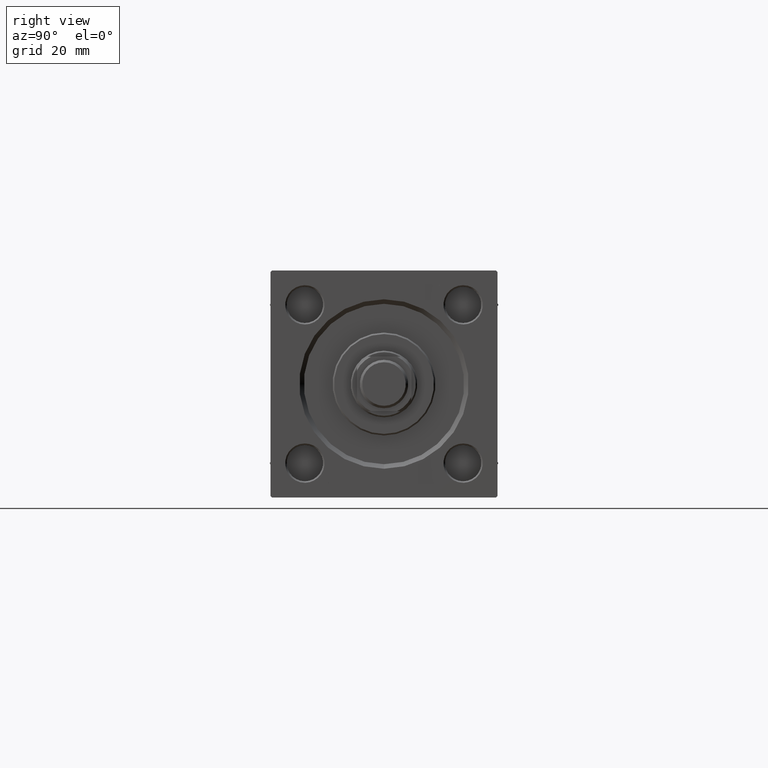
[diagram: clean part render]
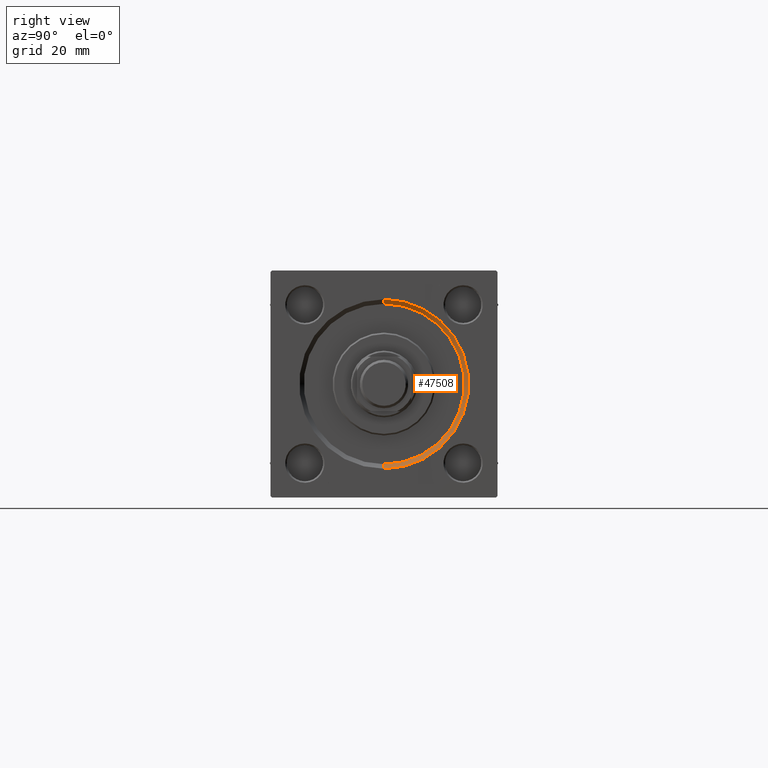
[diagram: same view with one face highlighted and labeled with its STEP entity id]
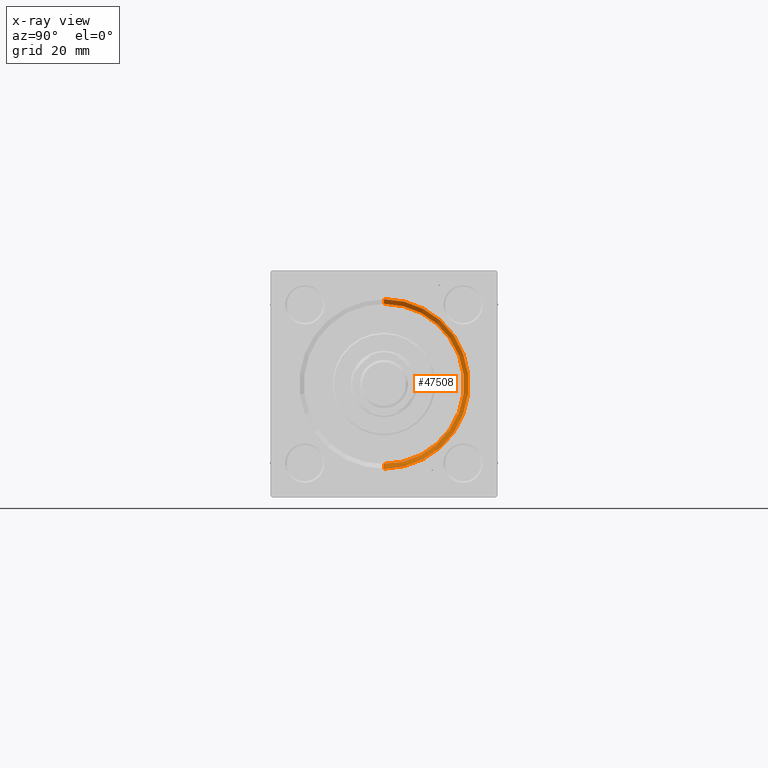
[diagram: x-ray of the same camera — body ghosted, the highlighted face saturated]
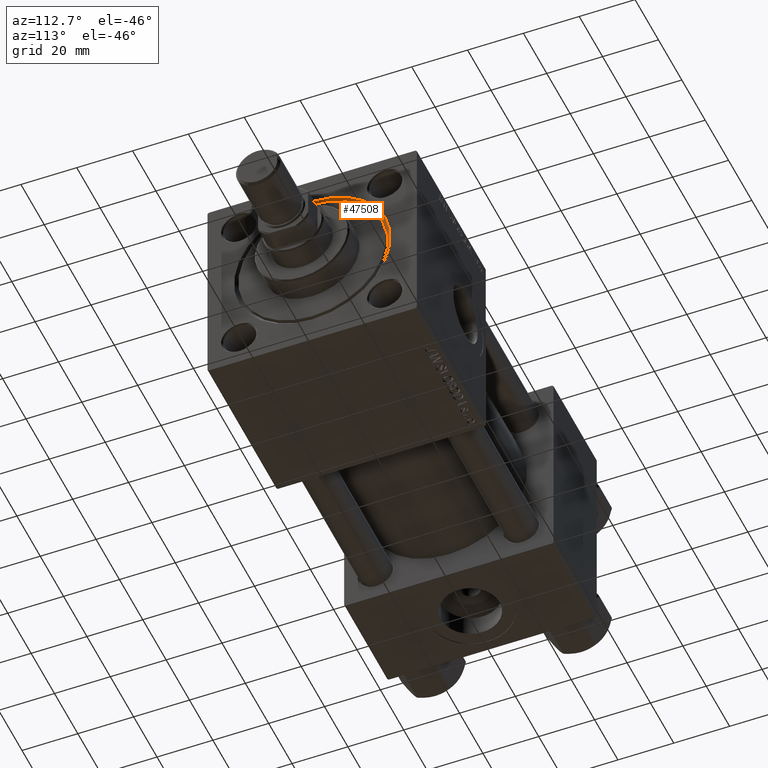
[diagram: same view with one face highlighted and labeled with its STEP entity id]
A machine part, right view. The second image highlights one B-rep face of the part: STEP entity #47508.
The next image is the same camera in x-ray: the body ghosted, the highlighted face saturated — about 0% of this face is hidden behind the body in this view.
A second angle (auxiliary view) of the same face is appended — the face is thin or edge-on in the first view.
In plain terms, the highlighted conical surface has half-angle 45 deg.
Its self-contained STEP definition (entity closure, byte-faithful):
#3 = CIRCLE ( 'NONE', #3303, 27.99999999999999645 ) ;
#1980 = CARTESIAN_POINT ( 'NONE',  ( 154.0000000000000000, 3.429011037612588881E-15, 27.99999999999999645 ) ) ;
#2979 = CARTESIAN_POINT ( 'NONE',  ( 152.5000000000000568, 0.000000000000000000, -26.50000000000000355 ) ) ;
#3303 = AXIS2_PLACEMENT_3D ( 'NONE', #8454, #11806, #22375 ) ;
#3940 = CARTESIAN_POINT ( 'NONE',  ( 152.5000000000000568, 0.000000000000000000, 0.000000000000000000 ) ) ;
#4508 = VERTEX_POINT ( 'NONE', #38009 ) ;
#5152 = FACE_OUTER_BOUND ( 'NONE', #10216, .T. ) ;
#5654 = DIRECTION ( 'NONE',  ( 0.000000000000000000, 0.000000000000000000, -1.000000000000000000 ) ) ;
#6317 = ORIENTED_EDGE ( 'NONE', *, *, #23012, .F. ) ;
#8276 = DIRECTION ( 'NONE',  ( 1.000000000000000000, 0.000000000000000000, 0.000000000000000000 ) ) ;
#8454 = CARTESIAN_POINT ( 'NONE',  ( 154.0000000000000000, 0.000000000000000000, 0.000000000000000000 ) ) ;
#10216 = EDGE_LOOP ( 'NONE', ( #23366, #6317, #46749, #34353 ) ) ;
#11589 = EDGE_CURVE ( 'NONE', #49525, #33940, #19099, .T. ) ;
#11806 = DIRECTION ( 'NONE',  ( -1.000000000000000000, -0.000000000000000000, 0.000000000000000000 ) ) ;
#13573 = CARTESIAN_POINT ( 'NONE',  ( 154.0000000000000000, 0.000000000000000000, -27.99999999999999645 ) ) ;
#13885 = LINE ( 'NONE', #41044, #31401 ) ;
#14500 = AXIS2_PLACEMENT_3D ( 'NONE', #20763, #48178, #5654 ) ;
#15312 = CONICAL_SURFACE ( 'NONE', #14500, 26.50000000000000355, 0.7853981633974644883 ) ;
#16247 = CIRCLE ( 'NONE', #17054, 26.50000000000000355 ) ;
#17054 = AXIS2_PLACEMENT_3D ( 'NONE', #3940, #8276, #23383 ) ;
#19099 = LINE ( 'NONE', #2979, #19137 ) ;
#19137 = VECTOR ( 'NONE', #49335, 1000.000000000000114 ) ;
#20763 = CARTESIAN_POINT ( 'NONE',  ( 152.5000000000000568, 0.000000000000000000, 0.000000000000000000 ) ) ;
#22375 = DIRECTION ( 'NONE',  ( 0.000000000000000000, 0.000000000000000000, 1.000000000000000000 ) ) ;
#23012 = EDGE_CURVE ( 'NONE', #49525, #4508, #16247, .T. ) ;
#23366 = ORIENTED_EDGE ( 'NONE', *, *, #41334, .F. ) ;
#23383 = DIRECTION ( 'NONE',  ( 0.000000000000000000, 0.000000000000000000, 1.000000000000000000 ) ) ;
#31207 = EDGE_CURVE ( 'NONE', #34261, #33940, #3, .T. ) ;
#31401 = VECTOR ( 'NONE', #33575, 1000.000000000000114 ) ;
#33575 = DIRECTION ( 'NONE',  ( 0.7071067811865361374, 8.659560562355073374E-17, 0.7071067811865588970 ) ) ;
#33940 = VERTEX_POINT ( 'NONE', #13573 ) ;
#34261 = VERTEX_POINT ( 'NONE', #1980 ) ;
#34353 = ORIENTED_EDGE ( 'NONE', *, *, #31207, .F. ) ;
#38009 = CARTESIAN_POINT ( 'NONE',  ( 152.5000000000000568, 3.245314017740486554E-15, 26.50000000000000355 ) ) ;
#41044 = CARTESIAN_POINT ( 'NONE',  ( 152.5000000000000568, 3.245314017740486554E-15, 26.50000000000000355 ) ) ;
#41334 = EDGE_CURVE ( 'NONE', #4508, #34261, #13885, .T. ) ;
#45420 = CARTESIAN_POINT ( 'NONE',  ( 152.5000000000000568, 0.000000000000000000, -26.50000000000000355 ) ) ;
#46749 = ORIENTED_EDGE ( 'NONE', *, *, #11589, .T. ) ;
#47508 = ADVANCED_FACE ( 'NONE', ( #5152 ), #15312, .F. ) ;
#48178 = DIRECTION ( 'NONE',  ( 1.000000000000000000, 0.000000000000000000, 0.000000000000000000 ) ) ;
#49335 = DIRECTION ( 'NONE',  ( 0.7071067811865361374, 0.000000000000000000, -0.7071067811865588970 ) ) ;
#49525 = VERTEX_POINT ( 'NONE', #45420 ) ;